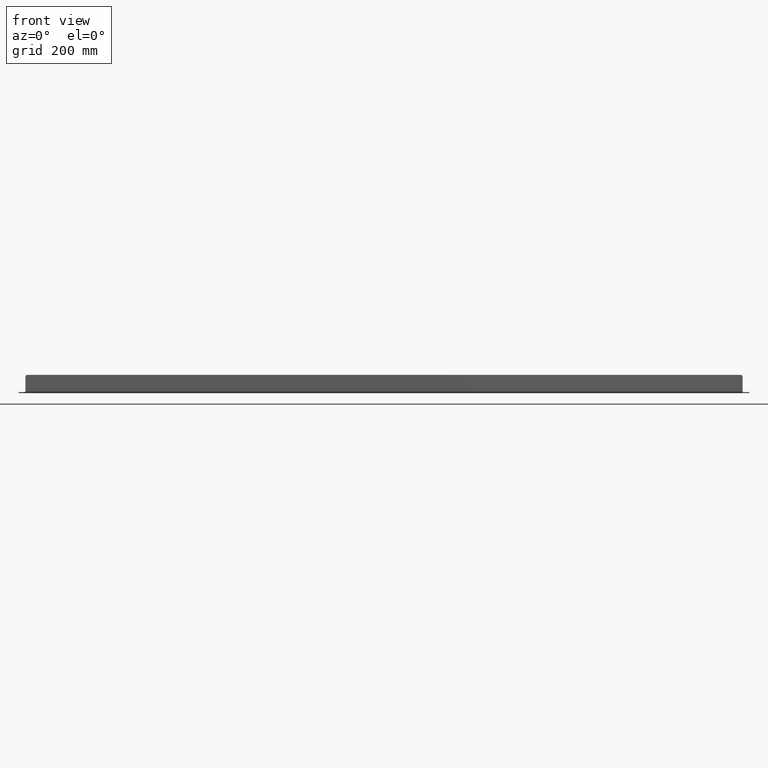
[diagram: clean part render]
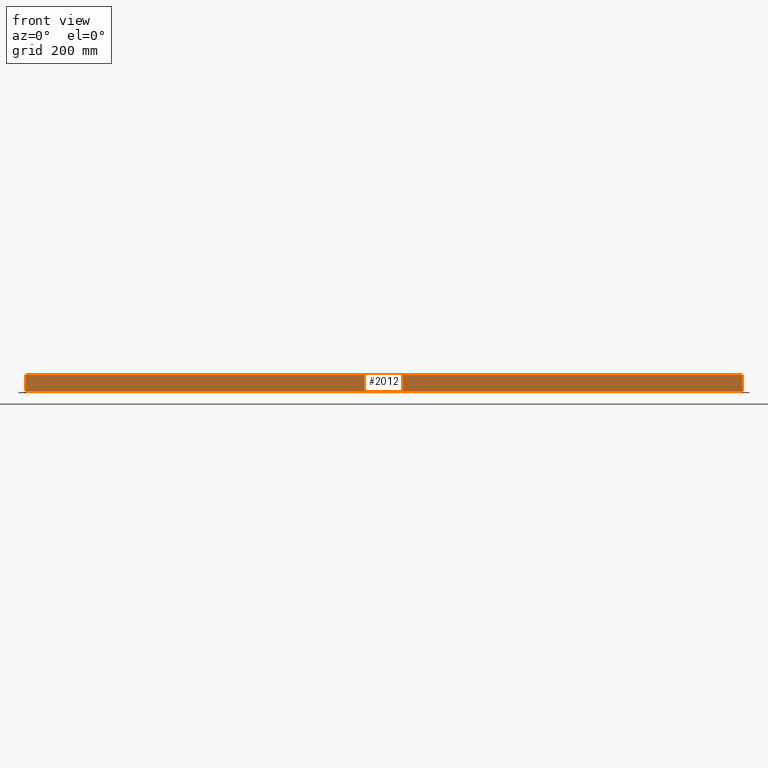
[diagram: same view with one face highlighted and labeled with its STEP entity id]
A machine part, front view. The second image highlights one B-rep face of the part: STEP entity #2012.
In plain terms, the highlighted planar face has unit normal (0, 1, 0).
Its self-contained STEP definition (entity closure, byte-faithful):
#75 = ORIENTED_EDGE ( 'NONE', *, *, #983, .F. ) ;
#136 = CARTESIAN_POINT ( 'NONE',  ( -981.4999999999995453, -1169.805262667904117, 631.0000000000001137 ) ) ;
#325 = ORIENTED_EDGE ( 'NONE', *, *, #3224, .F. ) ;
#341 = VERTEX_POINT ( 'NONE', #3019 ) ;
#388 = CARTESIAN_POINT ( 'NONE',  ( 1090.972523324353915, -1169.805262667904117, 631.0000000000001137 ) ) ;
#405 = LINE ( 'NONE', #388, #506 ) ;
#420 = CARTESIAN_POINT ( 'NONE',  ( -981.4999999999995453, -1169.805262667904117, 670.0000000000002274 ) ) ;
#440 = ORIENTED_EDGE ( 'NONE', *, *, #2566, .T. ) ;
#453 = CARTESIAN_POINT ( 'NONE',  ( 981.4999999999996589, -1169.805262667904117, 670.0000000000002274 ) ) ;
#461 = DIRECTION ( 'NONE',  ( 0.000000000000000000, 1.000000000000000000, 0.000000000000000000 ) ) ;
#467 = VERTEX_POINT ( 'NONE', #453 ) ;
#489 = CARTESIAN_POINT ( 'NONE',  ( 981.4999999999996589, -1169.805262667904117, 631.0000000000001137 ) ) ;
#506 = VECTOR ( 'NONE', #2919, 1000.000000000000000 ) ;
#548 = VECTOR ( 'NONE', #3136, 1000.000000000000000 ) ;
#636 = CARTESIAN_POINT ( 'NONE',  ( 1090.972523324353915, -1169.805262667904117, 625.0000000000001137 ) ) ;
#753 = EDGE_LOOP ( 'NONE', ( #440, #325, #75, #1804, #2710, #3139 ) ) ;
#831 = CARTESIAN_POINT ( 'NONE',  ( 1090.972523324353915, -1169.805262667904117, 675.0000000000002274 ) ) ;
#844 = FACE_OUTER_BOUND ( 'NONE', #753, .T. ) ;
#895 = VERTEX_POINT ( 'NONE', #136 ) ;
#913 = DIRECTION ( 'NONE',  ( 0.000000000000000000, -0.000000000000000000, 1.000000000000000000 ) ) ;
#930 = LINE ( 'NONE', #1667, #548 ) ;
#983 = EDGE_CURVE ( 'NONE', #895, #2324, #1727, .T. ) ;
#1017 = VECTOR ( 'NONE', #1057, 1000.000000000000000 ) ;
#1057 = DIRECTION ( 'NONE',  ( -1.000000000000000000, -0.000000000000000000, 0.000000000000000000 ) ) ;
#1311 = EDGE_CURVE ( 'NONE', #341, #467, #1491, .T. ) ;
#1342 = LINE ( 'NONE', #831, #1017 ) ;
#1491 = CIRCLE ( 'NONE', #1594, 5.000000000000004441 ) ;
#1594 = AXIS2_PLACEMENT_3D ( 'NONE', #2238, #2695, #1753 ) ;
#1600 = EDGE_CURVE ( 'NONE', #895, #2125, #405, .T. ) ;
#1624 = DIRECTION ( 'NONE',  ( 0.000000000000000000, 1.000000000000000000, 0.000000000000000000 ) ) ;
#1642 = AXIS2_PLACEMENT_3D ( 'NONE', #2080, #1624, #1832 ) ;
#1667 = CARTESIAN_POINT ( 'NONE',  ( 981.4999999999996589, -1169.805262667904117, 625.0000000000001137 ) ) ;
#1727 = LINE ( 'NONE', #1911, #2920 ) ;
#1753 = DIRECTION ( 'NONE',  ( 0.000000000000000000, 0.000000000000000000, 1.000000000000000000 ) ) ;
#1804 = ORIENTED_EDGE ( 'NONE', *, *, #1600, .T. ) ;
#1823 = PLANE ( 'NONE',  #2904 ) ;
#1832 = DIRECTION ( 'NONE',  ( 0.000000000000000000, 0.000000000000000000, 1.000000000000000000 ) ) ;
#1911 = CARTESIAN_POINT ( 'NONE',  ( -981.4999999999995453, -1169.805262667904117, 625.0000000000001137 ) ) ;
#1933 = VERTEX_POINT ( 'NONE', #2551 ) ;
#2012 = ADVANCED_FACE ( 'NONE', ( #844 ), #1823, .F. ) ;
#2080 = CARTESIAN_POINT ( 'NONE',  ( -976.4999999999996589, -1169.805262667904117, 670.0000000000002274 ) ) ;
#2125 = VERTEX_POINT ( 'NONE', #489 ) ;
#2238 = CARTESIAN_POINT ( 'NONE',  ( 976.4999999999996589, -1169.805262667904117, 670.0000000000002274 ) ) ;
#2324 = VERTEX_POINT ( 'NONE', #420 ) ;
#2512 = DIRECTION ( 'NONE',  ( 0.000000000000000000, -0.000000000000000000, 1.000000000000000000 ) ) ;
#2551 = CARTESIAN_POINT ( 'NONE',  ( -976.4999999999996589, -1169.805262667904117, 675.0000000000002274 ) ) ;
#2566 = EDGE_CURVE ( 'NONE', #341, #1933, #1342, .T. ) ;
#2695 = DIRECTION ( 'NONE',  ( 0.000000000000000000, 1.000000000000000000, 0.000000000000000000 ) ) ;
#2710 = ORIENTED_EDGE ( 'NONE', *, *, #2726, .F. ) ;
#2726 = EDGE_CURVE ( 'NONE', #467, #2125, #930, .T. ) ;
#2904 = AXIS2_PLACEMENT_3D ( 'NONE', #636, #461, #2512 ) ;
#2919 = DIRECTION ( 'NONE',  ( 1.000000000000000000, -0.000000000000000000, 0.000000000000000000 ) ) ;
#2920 = VECTOR ( 'NONE', #913, 1000.000000000000000 ) ;
#3019 = CARTESIAN_POINT ( 'NONE',  ( 976.4999999999996589, -1169.805262667904117, 675.0000000000002274 ) ) ;
#3064 = CIRCLE ( 'NONE', #1642, 5.000000000000004441 ) ;
#3136 = DIRECTION ( 'NONE',  ( -0.000000000000000000, 0.000000000000000000, -1.000000000000000000 ) ) ;
#3139 = ORIENTED_EDGE ( 'NONE', *, *, #1311, .F. ) ;
#3224 = EDGE_CURVE ( 'NONE', #2324, #1933, #3064, .T. ) ;